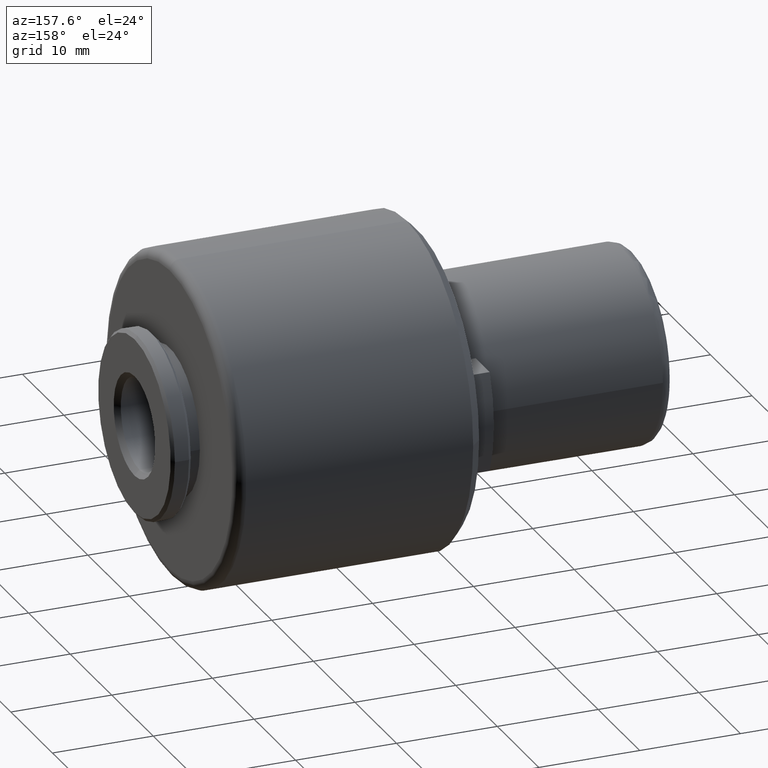
[diagram: clean part render]
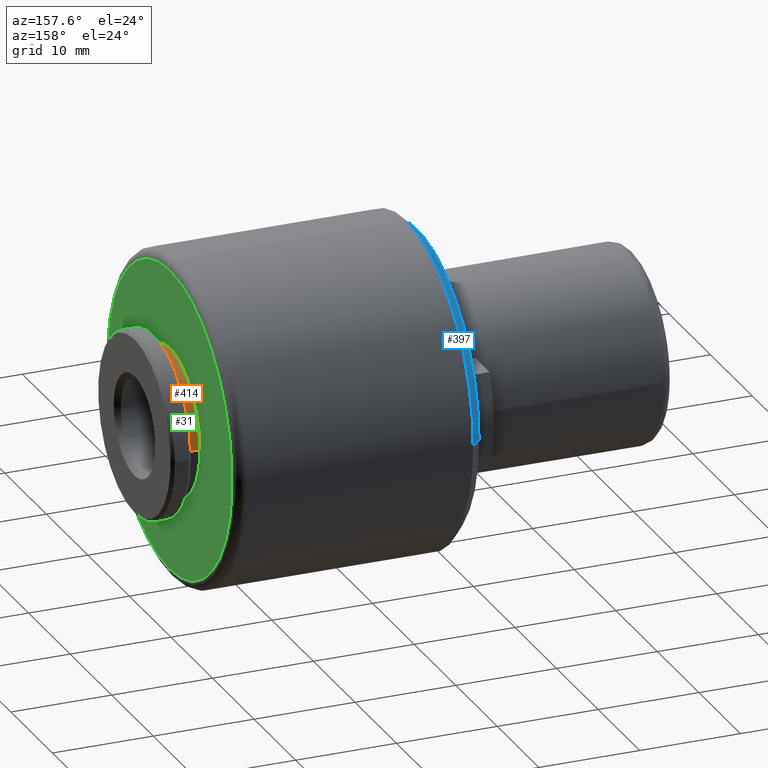
[diagram: same view with three faces highlighted in distinct colors, each labeled with its STEP entity id]
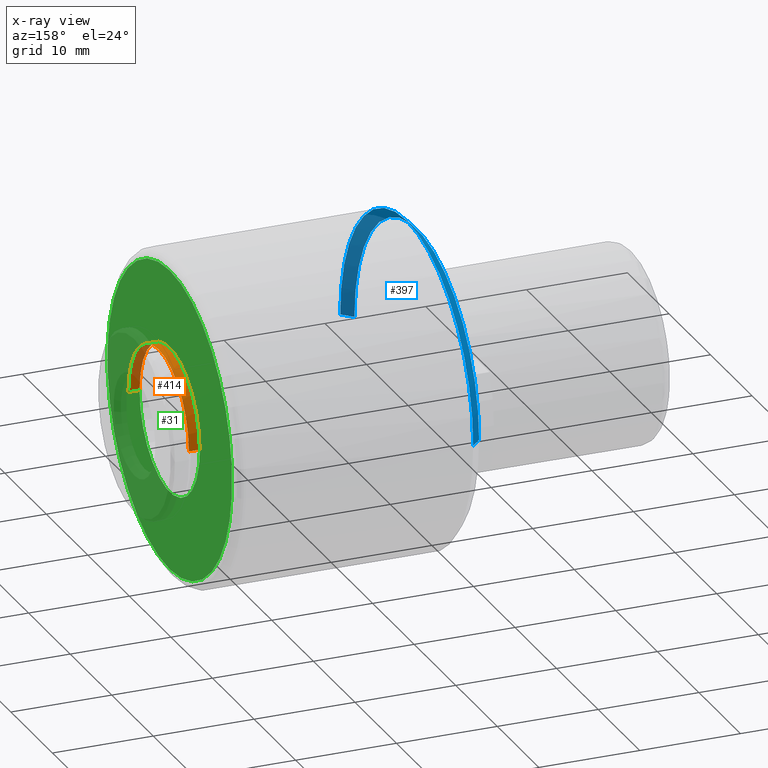
[diagram: x-ray of the same camera — body ghosted, the three highlighted faces saturated]
A machine part, auxiliary view with three faces highlighted in distinct colors.
The next image is the same camera in x-ray (body ghosted, the three faces saturated) — at least one of them is partly hidden behind the body in this view.
Their STEP definitions:

[orange] entity #414 — the highlighted cylindrical surface (partial cylindrical patch) has radius 7.25 mm, axis along (-1, -0, -0).
#28 = AXIS2_PLACEMENT_3D ( 'NONE', #942, #474, #576 ) ;
#56 = VECTOR ( 'NONE', #1121, 1000.000000000000000 ) ;
#73 = DIRECTION ( 'NONE',  ( 0.0000000000000000000, 0.0000000000000000000, 1.000000000000000000 ) ) ;
#90 = ORIENTED_EDGE ( 'NONE', *, *, #268, .F. ) ;
#98 = CIRCLE ( 'NONE', #438, 7.249999999999999100 ) ;
#99 = AXIS2_PLACEMENT_3D ( 'NONE', #1003, #606, #1236 ) ;
#145 = VECTOR ( 'NONE', #965, 1000.000000000000000 ) ;
#160 = EDGE_LOOP ( 'NONE', ( #750, #1098, #1165, #90, #205 ) ) ;
#184 = CARTESIAN_POINT ( 'NONE',  ( 47.10000000000000100, -7.250000000000000900, 0.0000000000000000000 ) ) ;
#204 = AXIS2_PLACEMENT_3D ( 'NONE', #463, #560, #1184 ) ;
#205 = ORIENTED_EDGE ( 'NONE', *, *, #1139, .F. ) ;
#228 = VERTEX_POINT ( 'NONE', #184 ) ;
#268 = EDGE_CURVE ( 'NONE', #228, #842, #1194, .T. ) ;
#279 = FACE_OUTER_BOUND ( 'NONE', #160, .T. ) ;
#286 = CARTESIAN_POINT ( 'NONE',  ( 47.10000000000000100, 0.0000000000000000000, 7.249999999999999100 ) ) ;
#319 = DIRECTION ( 'NONE',  ( 1.000000000000000000, -0.0000000000000000000, -0.0000000000000000000 ) ) ;
#333 = VERTEX_POINT ( 'NONE', #286 ) ;
#413 = CIRCLE ( 'NONE', #28, 7.249999999999999100 ) ;
#414 = ADVANCED_FACE ( 'NONE', ( #279 ), #482, .T. ) ;
#417 = EDGE_CURVE ( 'NONE', #1195, #711, #691, .T. ) ;
#438 = AXIS2_PLACEMENT_3D ( 'NONE', #1216, #319, #73 ) ;
#463 = CARTESIAN_POINT ( 'NONE',  ( 46.00000000000004300, 0.0000000000000000000, 0.0000000000000000000 ) ) ;
#474 = DIRECTION ( 'NONE',  ( 1.000000000000000000, -0.0000000000000000000, -0.0000000000000000000 ) ) ;
#482 = CYLINDRICAL_SURFACE ( 'NONE', #99, 7.250000000000000000 ) ;
#496 = CIRCLE ( 'NONE', #204, 7.249999999999981300 ) ;
#560 = DIRECTION ( 'NONE',  ( -1.000000000000000000, -0.0000000000000000000, -0.0000000000000000000 ) ) ;
#576 = DIRECTION ( 'NONE',  ( 0.0000000000000000000, 0.0000000000000000000, 1.000000000000000000 ) ) ;
#587 = CARTESIAN_POINT ( 'NONE',  ( 47.10000000000000100, 7.250000000000000900, 8.878689293818312000E-016 ) ) ;
#606 = DIRECTION ( 'NONE',  ( -1.000000000000000000, -4.785444071660157900E-016, -0.0000000000000000000 ) ) ;
#684 = EDGE_CURVE ( 'NONE', #842, #711, #496, .T. ) ;
#691 = LINE ( 'NONE', #1164, #145 ) ;
#711 = VERTEX_POINT ( 'NONE', #1004 ) ;
#716 = EDGE_CURVE ( 'NONE', #1195, #333, #98, .T. ) ;
#750 = ORIENTED_EDGE ( 'NONE', *, *, #716, .F. ) ;
#842 = VERTEX_POINT ( 'NONE', #857 ) ;
#857 = CARTESIAN_POINT ( 'NONE',  ( 46.00000000000004300, -7.249999999999981300, 0.0000000000000000000 ) ) ;
#942 = CARTESIAN_POINT ( 'NONE',  ( 47.10000000000000100, 0.0000000000000000000, 0.0000000000000000000 ) ) ;
#965 = DIRECTION ( 'NONE',  ( -1.000000000000000000, -4.785444071660157900E-016, -0.0000000000000000000 ) ) ;
#1003 = CARTESIAN_POINT ( 'NONE',  ( 47.10000000000000100, 0.0000000000000000000, 0.0000000000000000000 ) ) ;
#1004 = CARTESIAN_POINT ( 'NONE',  ( 46.00000000000004300, 7.249999999999981300, 8.878689293818299200E-016 ) ) ;
#1098 = ORIENTED_EDGE ( 'NONE', *, *, #417, .T. ) ;
#1121 = DIRECTION ( 'NONE',  ( -1.000000000000000000, -4.785444071660157900E-016, -0.0000000000000000000 ) ) ;
#1133 = CARTESIAN_POINT ( 'NONE',  ( 47.10000000000000900, -7.250000000000000000, 0.0000000000000000000 ) ) ;
#1139 = EDGE_CURVE ( 'NONE', #333, #228, #413, .T. ) ;
#1164 = CARTESIAN_POINT ( 'NONE',  ( 47.09999999999999400, 7.250000000000000000, 8.878689293818310100E-016 ) ) ;
#1165 = ORIENTED_EDGE ( 'NONE', *, *, #684, .F. ) ;
#1184 = DIRECTION ( 'NONE',  ( 0.0000000000000000000, 0.0000000000000000000, 1.000000000000000000 ) ) ;
#1194 = LINE ( 'NONE', #1133, #56 ) ;
#1195 = VERTEX_POINT ( 'NONE', #587 ) ;
#1216 = CARTESIAN_POINT ( 'NONE',  ( 47.10000000000000100, 0.0000000000000000000, 0.0000000000000000000 ) ) ;
#1236 = DIRECTION ( 'NONE',  ( 9.570888143320315900E-016, -1.000000000000000000, 0.0000000000000000000 ) ) ;

[blue] entity #397 — the highlighted conical surface has half-angle 45 deg.
#19 = VERTEX_POINT ( 'NONE', #762 ) ;
#30 = ORIENTED_EDGE ( 'NONE', *, *, #746, .F. ) ;
#44 = VERTEX_POINT ( 'NONE', #792 ) ;
#74 = VERTEX_POINT ( 'NONE', #388 ) ;
#132 = CARTESIAN_POINT ( 'NONE',  ( 21.50000000000000400, -15.00000000000000000, 1.836970198721029600E-015 ) ) ;
#154 = CARTESIAN_POINT ( 'NONE',  ( 22.49999999999996400, 0.0000000000000000000, 0.0000000000000000000 ) ) ;
#234 = EDGE_CURVE ( 'NONE', #74, #1177, #1107, .T. ) ;
#236 = DIRECTION ( 'NONE',  ( 1.000000000000000000, 1.156482317317871700E-016, -0.0000000000000000000 ) ) ;
#252 = CONICAL_SURFACE ( 'NONE', #1090, 15.00000000000000000, 0.7853981633974500600 ) ;
#257 = LINE ( 'NONE', #132, #504 ) ;
#341 = CARTESIAN_POINT ( 'NONE',  ( 21.50000000000000000, 0.0000000000000000000, 0.0000000000000000000 ) ) ;
#383 = ORIENTED_EDGE ( 'NONE', *, *, #234, .T. ) ;
#388 = CARTESIAN_POINT ( 'NONE',  ( 21.49999999999996800, 14.99999999999996300, 0.0000000000000000000 ) ) ;
#397 = ADVANCED_FACE ( 'NONE', ( #663 ), #252, .T. ) ;
#406 = DIRECTION ( 'NONE',  ( 2.168404344971008900E-015, 0.0000000000000000000, -1.000000000000000000 ) ) ;
#441 = DIRECTION ( 'NONE',  ( 0.7071067811865462400, 0.7071067811865489100, 0.0000000000000000000 ) ) ;
#445 = CARTESIAN_POINT ( 'NONE',  ( 21.49999999999996800, -4.212971753347065100E-030, 0.0000000000000000000 ) ) ;
#504 = VECTOR ( 'NONE', #1010, 1000.000000000000000 ) ;
#515 = CARTESIAN_POINT ( 'NONE',  ( 22.49999999999996400, 0.0000000000000000000, 0.0000000000000000000 ) ) ;
#532 = DIRECTION ( 'NONE',  ( -2.312964634635743000E-016, 1.000000000000000000, 0.0000000000000000000 ) ) ;
#624 = AXIS2_PLACEMENT_3D ( 'NONE', #515, #1134, #406 ) ;
#643 = DIRECTION ( 'NONE',  ( 1.000000000000000000, 1.156482317317871700E-016, -0.0000000000000000000 ) ) ;
#647 = EDGE_CURVE ( 'NONE', #793, #19, #805, .T. ) ;
#663 = FACE_OUTER_BOUND ( 'NONE', #1154, .T. ) ;
#739 = VECTOR ( 'NONE', #441, 1000.000000000000000 ) ;
#746 = EDGE_CURVE ( 'NONE', #44, #793, #1238, .T. ) ;
#760 = EDGE_CURVE ( 'NONE', #1177, #19, #257, .T. ) ;
#762 = CARTESIAN_POINT ( 'NONE',  ( 22.49999999999996400, -15.99999999999996300, 1.959434878635760400E-015 ) ) ;
#792 = CARTESIAN_POINT ( 'NONE',  ( 22.49999999999996400, 15.99999999999997000, 0.0000000000000000000 ) ) ;
#793 = VERTEX_POINT ( 'NONE', #1019 ) ;
#797 = EDGE_CURVE ( 'NONE', #74, #44, #1033, .T. ) ;
#805 = CIRCLE ( 'NONE', #1053, 16.00000000000000000 ) ;
#812 = DIRECTION ( 'NONE',  ( 0.0000000000000000000, 1.000000000000000000, 0.0000000000000000000 ) ) ;
#821 = ORIENTED_EDGE ( 'NONE', *, *, #647, .F. ) ;
#846 = DIRECTION ( 'NONE',  ( 1.000000000000000000, 0.0000000000000000000, 0.0000000000000000000 ) ) ;
#900 = CARTESIAN_POINT ( 'NONE',  ( 21.50000000000000000, 15.00000000000000000, 0.0000000000000000000 ) ) ;
#904 = ORIENTED_EDGE ( 'NONE', *, *, #760, .T. ) ;
#948 = CARTESIAN_POINT ( 'NONE',  ( 21.49999999999996800, -14.99999999999996300, 1.898202538678395200E-015 ) ) ;
#950 = AXIS2_PLACEMENT_3D ( 'NONE', #445, #236, #812 ) ;
#976 = DIRECTION ( 'NONE',  ( 2.168404344971008900E-015, 0.0000000000000000000, -1.000000000000000000 ) ) ;
#1010 = DIRECTION ( 'NONE',  ( 0.7071067811865464600, -0.7071067811865486800, 8.659560562354948900E-017 ) ) ;
#1019 = CARTESIAN_POINT ( 'NONE',  ( 22.49999999999996400, 0.0000000000000000000, 16.00000000000000000 ) ) ;
#1033 = LINE ( 'NONE', #900, #739 ) ;
#1053 = AXIS2_PLACEMENT_3D ( 'NONE', #154, #846, #976 ) ;
#1090 = AXIS2_PLACEMENT_3D ( 'NONE', #341, #643, #532 ) ;
#1107 = CIRCLE ( 'NONE', #950, 14.99999999999996300 ) ;
#1108 = ORIENTED_EDGE ( 'NONE', *, *, #797, .F. ) ;
#1134 = DIRECTION ( 'NONE',  ( 1.000000000000000000, 0.0000000000000000000, 0.0000000000000000000 ) ) ;
#1154 = EDGE_LOOP ( 'NONE', ( #383, #904, #821, #30, #1108 ) ) ;
#1177 = VERTEX_POINT ( 'NONE', #948 ) ;
#1238 = CIRCLE ( 'NONE', #624, 16.00000000000000000 ) ;

[green] entity #31 — the highlighted planar face has unit normal (1, -0, 0).
#12 = AXIS2_PLACEMENT_3D ( 'NONE', #401, #979, #1032 ) ;
#21 = AXIS2_PLACEMENT_3D ( 'NONE', #281, #738, #1040 ) ;
#31 = ADVANCED_FACE ( 'NONE', ( #589, #32 ), #1147, .T. ) ;
#32 = FACE_BOUND ( 'NONE', #425, .T. ) ;
#40 = AXIS2_PLACEMENT_3D ( 'NONE', #134, #1072, #1043 ) ;
#48 = ORIENTED_EDGE ( 'NONE', *, *, #732, .T. ) ;
#71 = CARTESIAN_POINT ( 'NONE',  ( 46.00000000000000000, 0.0000000000000000000, -15.00000000000000000 ) ) ;
#134 = CARTESIAN_POINT ( 'NONE',  ( 46.00000000000004300, 0.0000000000000000000, 0.0000000000000000000 ) ) ;
#204 = AXIS2_PLACEMENT_3D ( 'NONE', #463, #560, #1184 ) ;
#264 = CIRCLE ( 'NONE', #12, 15.00000000000000000 ) ;
#281 = CARTESIAN_POINT ( 'NONE',  ( 46.00000000000000000, -15.18000000000000100, 15.18000000000000100 ) ) ;
#322 = CARTESIAN_POINT ( 'NONE',  ( 46.00000000000000000, 0.0000000000000000000, 0.0000000000000000000 ) ) ;
#350 = DIRECTION ( 'NONE',  ( 0.0000000000000000000, 0.0000000000000000000, -1.000000000000000000 ) ) ;
#358 = VERTEX_POINT ( 'NONE', #71 ) ;
#380 = CIRCLE ( 'NONE', #40, 7.249999999999981300 ) ;
#393 = VERTEX_POINT ( 'NONE', #653 ) ;
#401 = CARTESIAN_POINT ( 'NONE',  ( 46.00000000000000000, 0.0000000000000000000, 0.0000000000000000000 ) ) ;
#421 = EDGE_CURVE ( 'NONE', #711, #842, #380, .T. ) ;
#425 = EDGE_LOOP ( 'NONE', ( #717, #766 ) ) ;
#463 = CARTESIAN_POINT ( 'NONE',  ( 46.00000000000004300, 0.0000000000000000000, 0.0000000000000000000 ) ) ;
#488 = DIRECTION ( 'NONE',  ( 1.000000000000000000, -0.0000000000000000000, 0.0000000000000000000 ) ) ;
#496 = CIRCLE ( 'NONE', #204, 7.249999999999981300 ) ;
#560 = DIRECTION ( 'NONE',  ( -1.000000000000000000, -0.0000000000000000000, -0.0000000000000000000 ) ) ;
#562 = AXIS2_PLACEMENT_3D ( 'NONE', #322, #488, #350 ) ;
#589 = FACE_OUTER_BOUND ( 'NONE', #642, .T. ) ;
#642 = EDGE_LOOP ( 'NONE', ( #48, #1093 ) ) ;
#653 = CARTESIAN_POINT ( 'NONE',  ( 46.00000000000000000, 1.898202538678397200E-015, 15.00000000000000000 ) ) ;
#660 = EDGE_CURVE ( 'NONE', #393, #358, #264, .T. ) ;
#684 = EDGE_CURVE ( 'NONE', #842, #711, #496, .T. ) ;
#711 = VERTEX_POINT ( 'NONE', #1004 ) ;
#717 = ORIENTED_EDGE ( 'NONE', *, *, #684, .T. ) ;
#732 = EDGE_CURVE ( 'NONE', #358, #393, #878, .T. ) ;
#738 = DIRECTION ( 'NONE',  ( 1.000000000000000000, -0.0000000000000000000, 0.0000000000000000000 ) ) ;
#766 = ORIENTED_EDGE ( 'NONE', *, *, #421, .T. ) ;
#842 = VERTEX_POINT ( 'NONE', #857 ) ;
#857 = CARTESIAN_POINT ( 'NONE',  ( 46.00000000000004300, -7.249999999999981300, 0.0000000000000000000 ) ) ;
#878 = CIRCLE ( 'NONE', #562, 15.00000000000000000 ) ;
#979 = DIRECTION ( 'NONE',  ( 1.000000000000000000, -0.0000000000000000000, 0.0000000000000000000 ) ) ;
#1004 = CARTESIAN_POINT ( 'NONE',  ( 46.00000000000004300, 7.249999999999981300, 8.878689293818299200E-016 ) ) ;
#1032 = DIRECTION ( 'NONE',  ( 0.0000000000000000000, 0.0000000000000000000, -1.000000000000000000 ) ) ;
#1040 = DIRECTION ( 'NONE',  ( 0.0000000000000000000, 0.0000000000000000000, -1.000000000000000000 ) ) ;
#1043 = DIRECTION ( 'NONE',  ( 0.0000000000000000000, 0.0000000000000000000, 1.000000000000000000 ) ) ;
#1072 = DIRECTION ( 'NONE',  ( -1.000000000000000000, -0.0000000000000000000, -0.0000000000000000000 ) ) ;
#1093 = ORIENTED_EDGE ( 'NONE', *, *, #660, .T. ) ;
#1147 = PLANE ( 'NONE',  #21 ) ;
#1184 = DIRECTION ( 'NONE',  ( 0.0000000000000000000, 0.0000000000000000000, 1.000000000000000000 ) ) ;